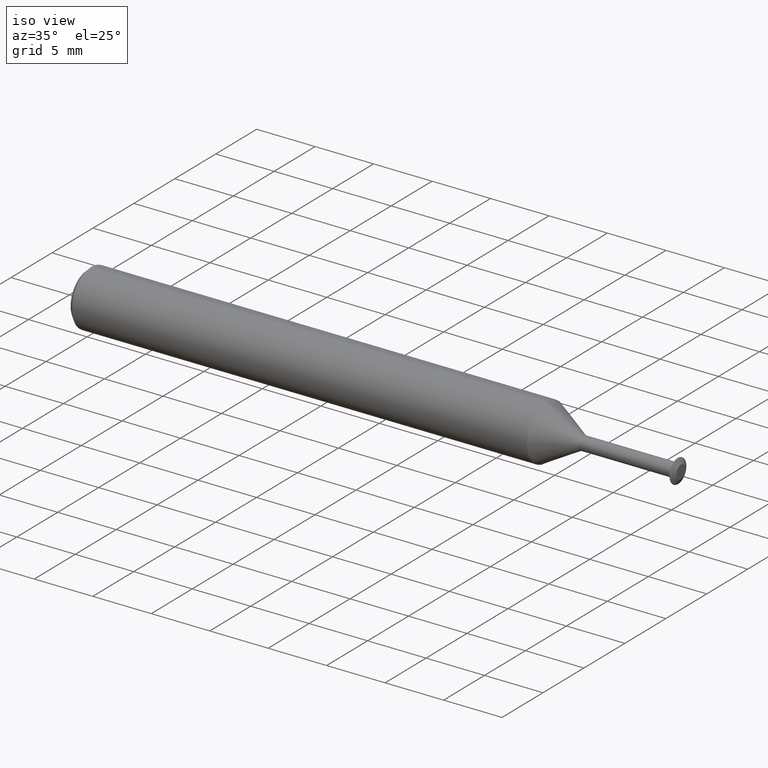
[diagram: clean part render]
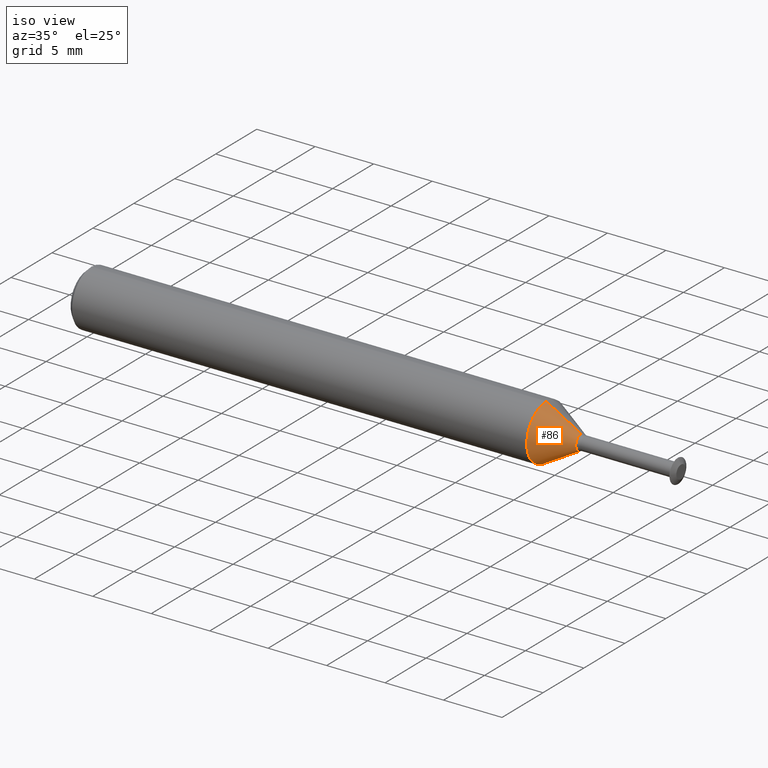
[diagram: same view with one face highlighted and labeled with its STEP entity id]
A machine part, iso view. The second image highlights one B-rep face of the part: STEP entity #86.
In plain terms, the highlighted conical surface has half-angle 30 deg.
Its self-contained STEP definition (entity closure, byte-faithful):
#3 = VERTEX_POINT ( 'NONE', #347 ) ;
#6 = EDGE_CURVE ( 'NONE', #55, #3, #444, .T. ) ;
#19 = ORIENTED_EDGE ( 'NONE', *, *, #156, .F. ) ;
#42 = DIRECTION ( 'NONE',  ( -0.8660254037844379305, 0.0000000000000000000, 0.5000000000000009992 ) ) ;
#55 = VERTEX_POINT ( 'NONE', #114 ) ;
#86 = ADVANCED_FACE ( 'NONE', ( #308 ), #483, .T. ) ;
#114 = CARTESIAN_POINT ( 'NONE',  ( 1.663656094570019617, 0.0000000000000000000, 0.02584936490538871506 ) ) ;
#146 = CIRCLE ( 'NONE', #361, 0.02584936490538874629 ) ;
#147 = CARTESIAN_POINT ( 'NONE',  ( 1.663656094570019617, 0.0000000000000000000, 0.0000000000000000000 ) ) ;
#156 = EDGE_CURVE ( 'NONE', #395, #3, #229, .T. ) ;
#158 = VECTOR ( 'NONE', #42, 39.37007874015748854 ) ;
#163 = CARTESIAN_POINT ( 'NONE',  ( 1.663656094570019617, 0.0000000000000000000, 0.02584936490538874629 ) ) ;
#208 = EDGE_CURVE ( 'NONE', #363, #395, #298, .T. ) ;
#211 = AXIS2_PLACEMENT_3D ( 'NONE', #406, #390, #354 ) ;
#223 = DIRECTION ( 'NONE',  ( -0.8660254037844379305, 6.123233995736778362E-17, -0.5000000000000009992 ) ) ;
#229 = CIRCLE ( 'NONE', #211, 0.09360000000000001652 ) ;
#252 = AXIS2_PLACEMENT_3D ( 'NONE', #272, #489, #253 ) ;
#253 = DIRECTION ( 'NONE',  ( 0.0000000000000000000, 0.0000000000000000000, 1.000000000000000000 ) ) ;
#272 = CARTESIAN_POINT ( 'NONE',  ( 1.663656094570019617, 0.0000000000000000000, 0.0000000000000000000 ) ) ;
#281 = ORIENTED_EDGE ( 'NONE', *, *, #485, .T. ) ;
#288 = ORIENTED_EDGE ( 'NONE', *, *, #208, .F. ) ;
#292 = DIRECTION ( 'NONE',  ( 0.0000000000000000000, 0.0000000000000000000, 1.000000000000000000 ) ) ;
#298 = LINE ( 'NONE', #371, #445 ) ;
#308 = FACE_OUTER_BOUND ( 'NONE', #479, .T. ) ;
#345 = DIRECTION ( 'NONE',  ( -1.000000000000000000, -0.0000000000000000000, -0.0000000000000000000 ) ) ;
#347 = CARTESIAN_POINT ( 'NONE',  ( 1.546308552341094211, 0.0000000000000000000, 0.09360000000000001652 ) ) ;
#354 = DIRECTION ( 'NONE',  ( 0.0000000000000000000, 0.0000000000000000000, 1.000000000000000000 ) ) ;
#361 = AXIS2_PLACEMENT_3D ( 'NONE', #147, #345, #292 ) ;
#363 = VERTEX_POINT ( 'NONE', #434 ) ;
#371 = CARTESIAN_POINT ( 'NONE',  ( 1.663656094570019617, 3.165634199137625534E-18, -0.02584936490538874629 ) ) ;
#380 = CARTESIAN_POINT ( 'NONE',  ( 1.546308552341094211, 1.146269404001922621E-17, -0.09360000000000001652 ) ) ;
#390 = DIRECTION ( 'NONE',  ( -1.000000000000000000, -0.0000000000000000000, -0.0000000000000000000 ) ) ;
#395 = VERTEX_POINT ( 'NONE', #380 ) ;
#406 = CARTESIAN_POINT ( 'NONE',  ( 1.546308552341094211, 0.0000000000000000000, 0.0000000000000000000 ) ) ;
#434 = CARTESIAN_POINT ( 'NONE',  ( 1.663656094570019617, 3.165634199137621682E-18, -0.02584936490538871506 ) ) ;
#444 = LINE ( 'NONE', #163, #158 ) ;
#445 = VECTOR ( 'NONE', #223, 39.37007874015748854 ) ;
#479 = EDGE_LOOP ( 'NONE', ( #288, #281, #496, #19 ) ) ;
#483 = CONICAL_SURFACE ( 'NONE', #252, 0.02584936490538874629, 0.5235987755983001479 ) ;
#485 = EDGE_CURVE ( 'NONE', #363, #55, #146, .T. ) ;
#489 = DIRECTION ( 'NONE',  ( -1.000000000000000000, -0.0000000000000000000, -0.0000000000000000000 ) ) ;
#496 = ORIENTED_EDGE ( 'NONE', *, *, #6, .T. ) ;